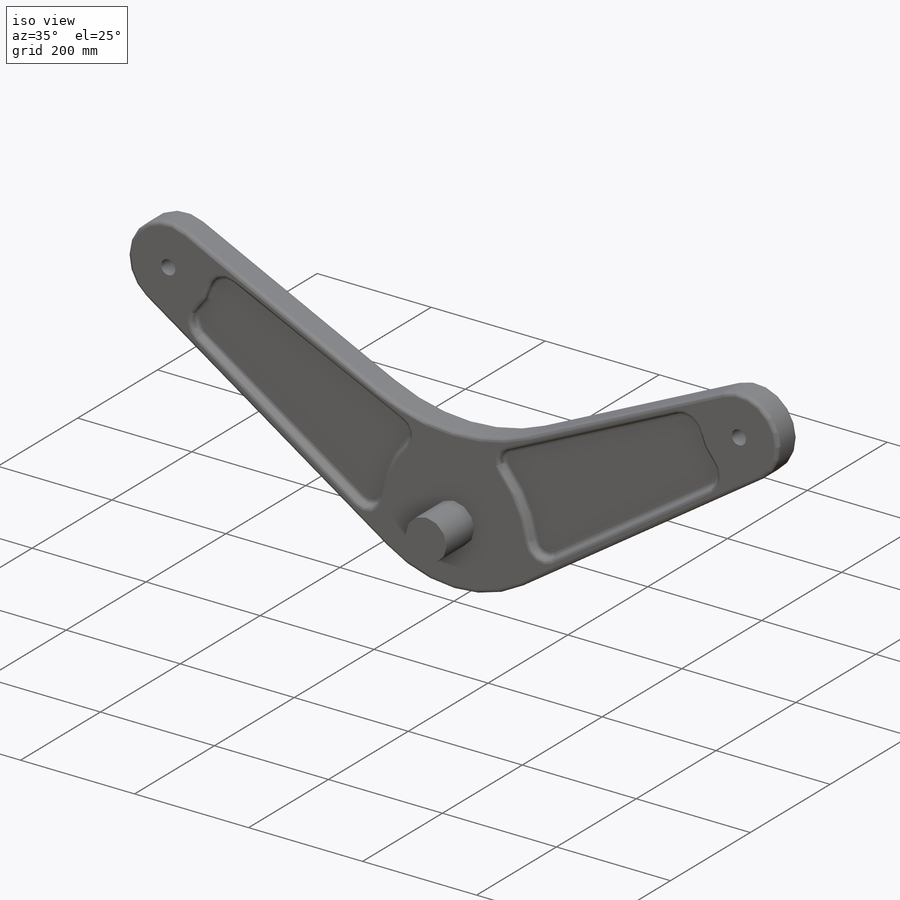
[diagram: iso view]
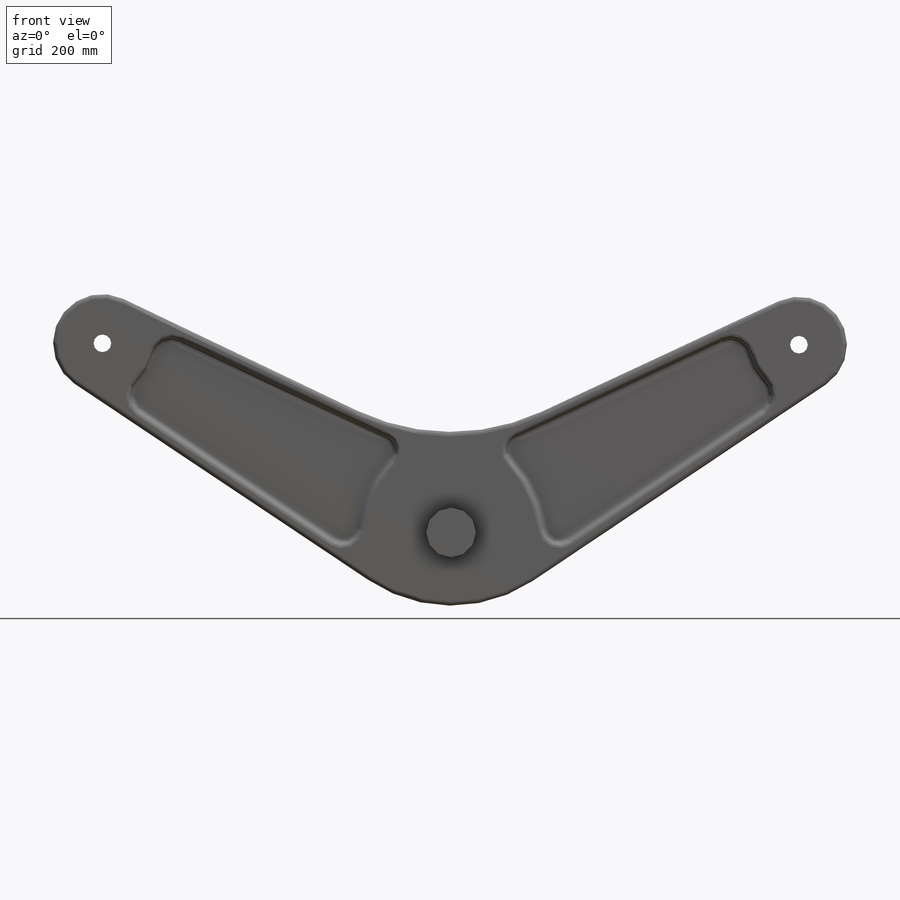
[diagram: front view]
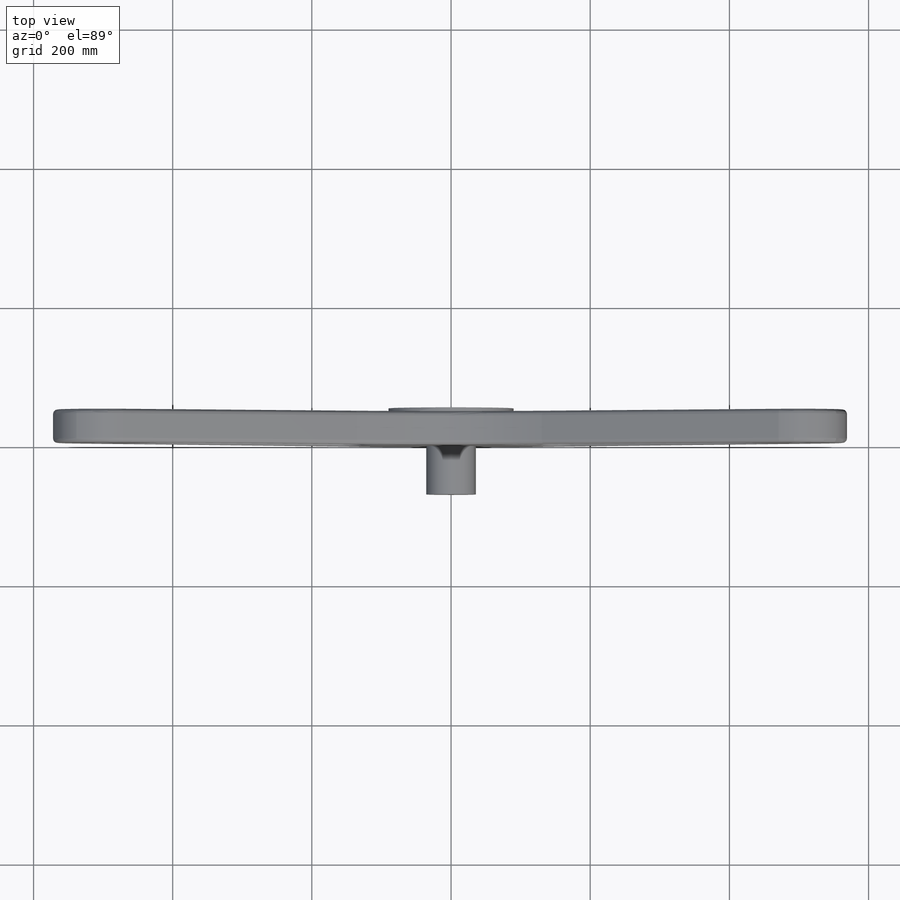
[diagram: top view]
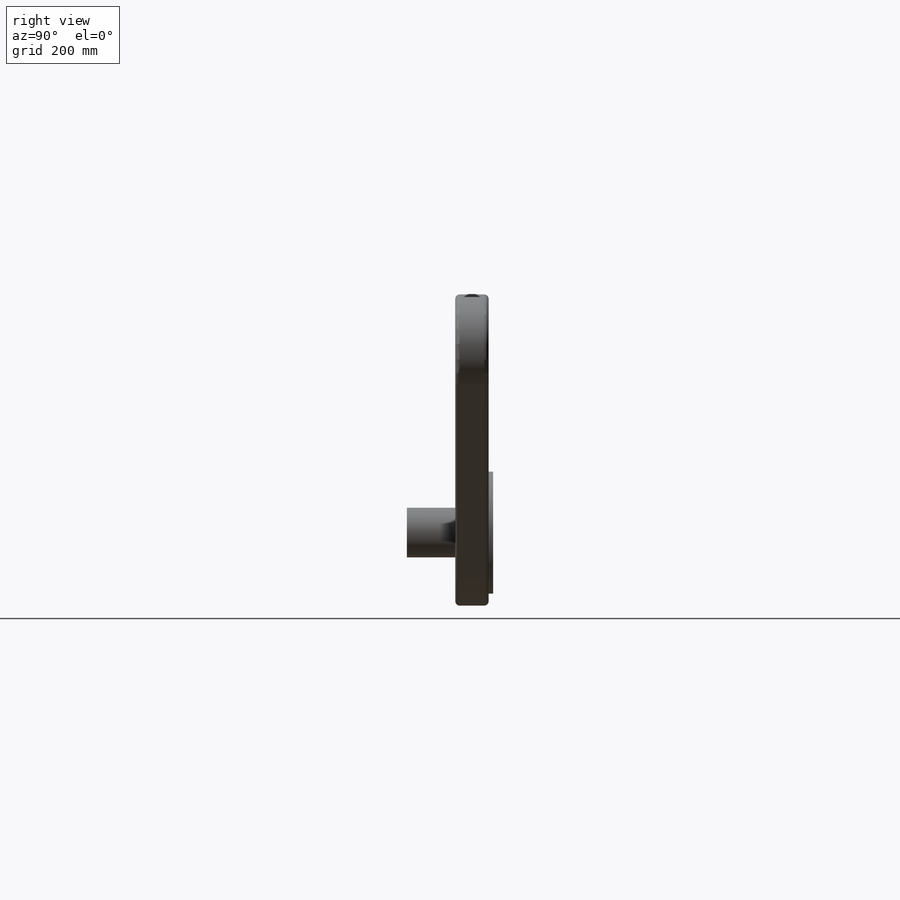
[diagram: right view]
SOLIDWORKS PART (.sldprt)
format: sldprt  version: not decoded by parser v0  size: 937,472 bytes
history: native  units: mm
features: sketch x9, extrude x3, cut_extrude x3, fillet x2, material x1 (+13 scaffold rows collapsed)
feature tree (31):
  scaffold x13  (default folders/planes/origin — collapsed)
  material  "Material <not specified>"
  sketch  "Sketch1"
  sketch  "Sketch2"
  sketch  "Sketch3"
  sketch  "Sketch4"
  extrude  "Extrude2"  Depth=48.006mm
  sketch  "Sketch5"
  cut_extrude  "Cut-Extrude1"  Depth=12.7mm
  sketch  "Sketch6"  dims[D1=0.0mm D2=0.0mm]
  cut_extrude  "Cut-Extrude2"  Depth=12.7mm
  fillet  "Fillet1"  Radius=6.35mm
  fillet  "Fillet2"  Radius=6.35mm
  sketch  "Sketch7"  dims[D1=25.4mm D2=25.4mm]
  cut_extrude  "Cut-Extrude3"  [1 undecoded]
  sketch  "Sketch8"
  extrude  "Extrude3"  Depth=6.35mm
  sketch  "Sketch9"  dims[D1=0.0mm]
  extrude  "Extrude4"  Depth=117.475mm
decode coverage: 10 of 17 modeling features carry decoded parameters
note: 1 parameter value undecoded
note: suppression state not decoded; provenance and decode notes live in map.json
